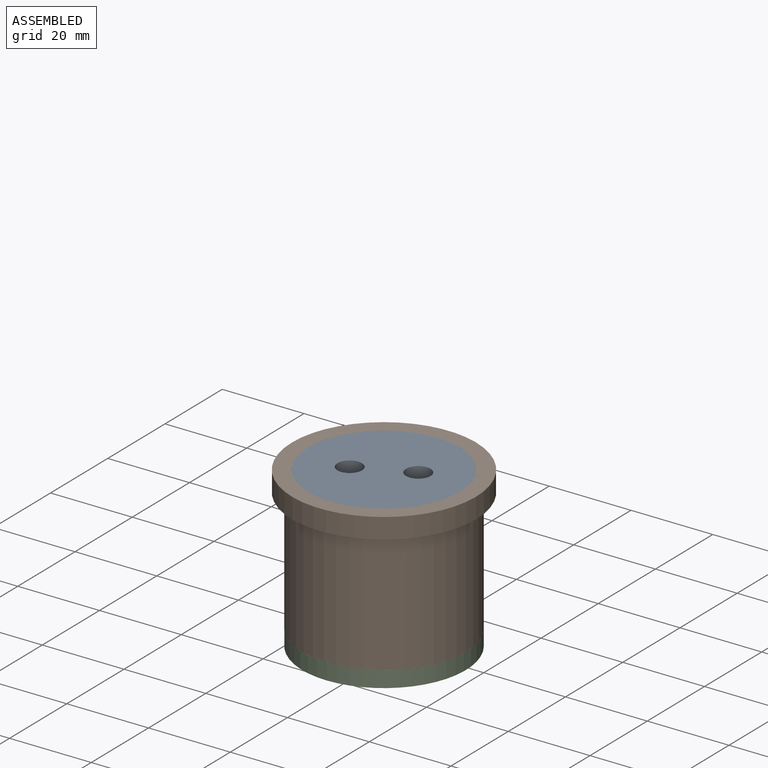
[diagram: assembled view]
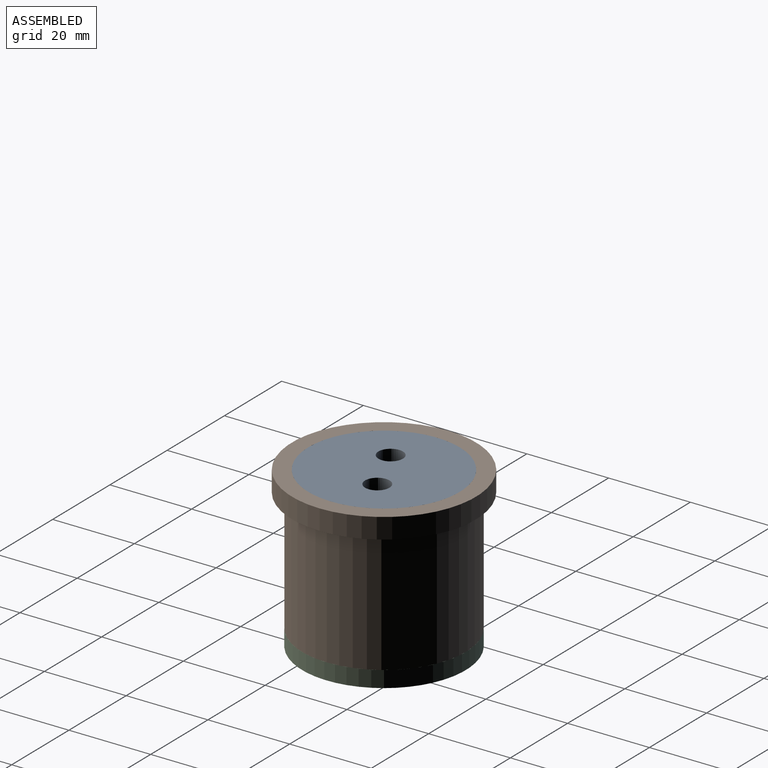
[diagram: assembled view, second angle]
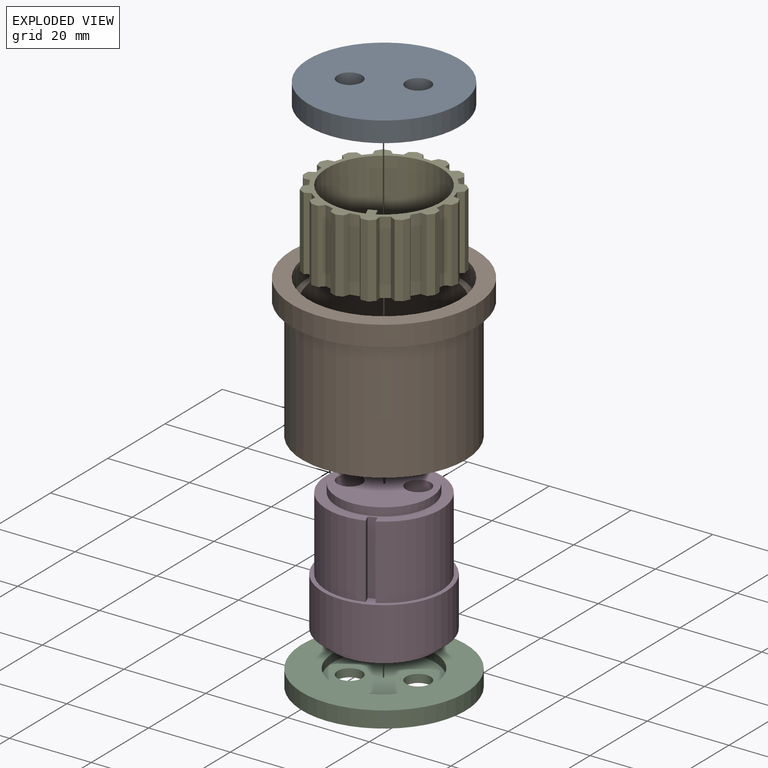
[diagram: exploded view]
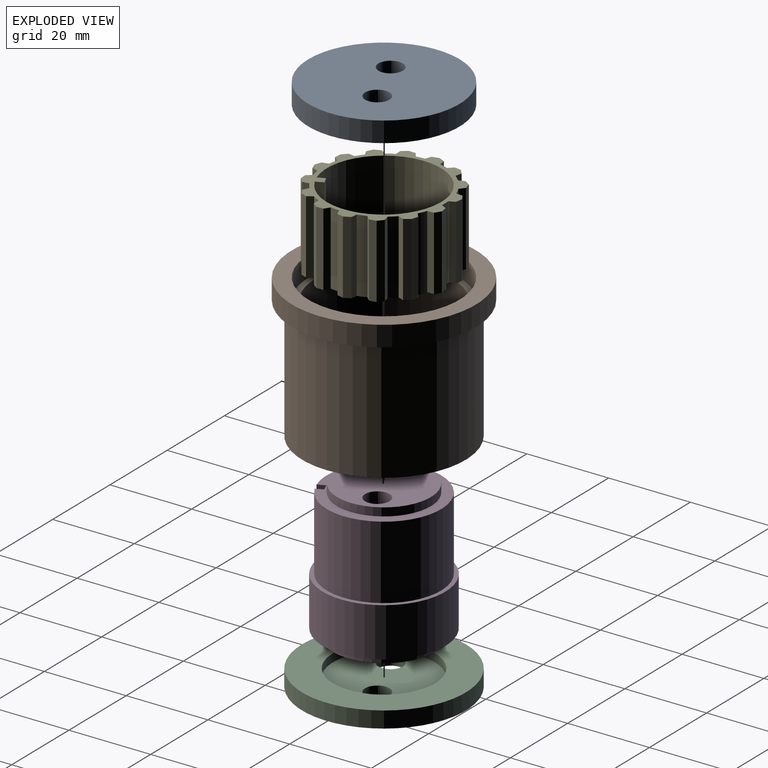
[diagram: exploded view, second angle]
ASSEMBLY  parts=5 mates=4
PART A: 7 faces, bbox 37x37x5 mm
  f0: cylinder r=18.5mm len=37mm, axis (0,0,-1), area 581.2mm2, adj f1,f2
  f1: plane 37x37mm, normal (0,0,1), area 1018.7mm2, adj f0,f5,f6
  f2: plane 37x37mm, normal (0,0,-1), area 659.7mm2, adj f0,f3
  f3: cylinder r=11.5mm len=23mm, axis (0,0,-1), area 144.5mm2, adj f2,f4
  f4: plane 23x23mm, normal (0,0,-1), area 358.9mm2, adj f3,f5,f6
  f5: cylinder r=3mm len=6mm, axis (0,0,1), area 56.5mm2, adj f1,f4
  f6: cylinder r=3mm len=6mm, axis (0,0,1), area 56.5mm2, adj f1,f4
PART B: 10 faces, bbox 45x45x35 mm
  f0: cylinder r=20mm len=40mm, axis (0,0,-1), area 3769.9mm2, adj f4,f9
  f1: plane 37x37mm, normal (0,0,1), area 167.3mm2, adj f5,f6
  f2: plane 34x34mm, normal (0,0,1), area 201.1mm2, adj f3,f5
  f3: cylinder r=15mm len=30mm, axis (0,0,-1), area 471.2mm2, adj f2,f4
  f4: plane 40x40mm, normal (0,0,-1), area 549.8mm2, adj f0,f3
  f5: cylinder r=17mm len=34mm, axis (0,0,-1), area 2670.4mm2, adj f1,f2
  f6: cylinder r=18.5mm len=37mm, axis (0,0,-1), area 581.2mm2, adj f1,f7
  f7: plane 45x45mm, normal (0,0,1), area 515.2mm2, adj f6,f8
  f8: cylinder r=22.5mm len=45mm, axis (0,0,1), area 706.9mm2, adj f7,f9
  f9: plane 45x45mm, normal (0,0,-1), area 333.8mm2, adj f0,f8
PART C: 7 faces, bbox 40x40x4 mm
  f0: cylinder r=3mm len=6mm, axis (0,0,1), area 37.7mm2, adj f4,f5
  f1: cylinder r=3mm len=6mm, axis (0,0,1), area 37.7mm2, adj f4,f5
  f2: cylinder r=20mm len=40mm, axis (0,0,-1), area 502.7mm2, adj f3,f4
  f3: plane 40x40mm, normal (0,0,1), area 765.8mm2, adj f2,f6
  f4: plane 40x40mm, normal (0,0,-1), area 1200.1mm2, adj f0,f1,f2
  f5: plane 25x25mm, normal (0,0,1), area 434.3mm2, adj f0,f1,f6
  f6: cylinder r=12.5mm len=25mm, axis (0,0,1), area 157.1mm2, adj f3,f5
PART D: 14 faces, bbox 30x30x34 mm
  f0: plane 28x27.96mm, normal (0,0,1), area 196.3mm2, adj f4,f5,f6,f7,f8
  f1: cylinder r=15mm len=30mm, axis (0,0,-1), area 1131mm2, adj f2,f3
  f2: plane 30x30mm, normal (0,0,-1), area 216mm2, adj f1,f10
  f3: plane 30x30mm, normal (0,0,1), area 95.1mm2, adj f1,f4,f5,f6,f7
  f4: cylinder r=14mm len=28mm, axis (0,0,-1), area 1547.3mm2, adj f0,f3,f5,f7
  f5: plane 18x1.96mm, normal (1,0,0), area 35.4mm2, adj f0,f3,f4,f6
  f6: plane 18x2mm, normal (0,1,0), area 36mm2, adj f0,f3,f5,f7
  f7: plane 18x1.96mm, normal (-1,0,0), area 35.4mm2, adj f0,f3,f4,f6
  f8: cylinder r=11.5mm len=23mm, axis (0,0,-1), area 144.5mm2, adj f0,f9
  f9: plane 23x23mm, normal (0,0,1), area 358.9mm2, adj f8,f12,f13
  f10: cylinder r=12.5mm len=25mm, axis (0,0,1), area 157.1mm2, adj f2,f11
  f11: plane 25x25mm, normal (0,0,-1), area 434.3mm2, adj f10,f12,f13
  f12: cylinder r=3mm len=34mm, axis (0,0,1), area 640.9mm2, adj f9,f11
  f13: cylinder r=3mm len=34mm, axis (0,0,1), area 640.9mm2, adj f9,f11
PART E: 111 faces, bbox 33.8x33.6x18 mm
  f0: plane 18x1.96mm, normal (1,0,0), area 35.4mm2, adj f1,f108,f109,f110
  f1: cylinder r=14mm len=28mm, axis (0,0,-1), area 1547.3mm2, adj f0,f2,f109,f110
  f2: plane 18x1.96mm, normal (-1,0,0), area 35.4mm2, adj f1,f108,f109,f110
  f3: plane 18x0.1mm, normal (0.31,-0.95,0), area 1.8mm2, adj f4,f107,f109,f110
  f4: plane 18x1.26mm, normal (0.55,-0.84,0), area 27mm2, adj f3,f5,f109,f110
  f5: plane 18x1.71mm, normal (1,-0.03,0), area 30.8mm2, adj f4,f6,f109,f110
  f6: plane 18x1.35mm, normal (0.79,0.62,0), area 30.8mm2, adj f5,f7,f109,f110
  f7: plane 18x1.5mm, normal (-0.05,1,0), area 27mm2, adj f6,f8,f109,f110
  f8: plane 18x0.1mm, normal (-0.31,0.95,0), area 1.8mm2, adj f7,f9,f109,f110
  f9: cylinder r=15mm len=18mm, axis (0,0,-1), area 40.9mm2, adj f8,f10,f109,f110
  f10: plane 18x0.07mm, normal (0.67,-0.74,0), area 1.8mm2, adj f9,f11,f109,f110
  f11: plane 18x1.26mm, normal (0.84,-0.54,0), area 27mm2, adj f10,f12,f109,f110
  f12: plane 18x1.59mm, normal (0.93,0.37,0), area 30.8mm2, adj f11,f13,f109,f110
  f13: plane 18x1.51mm, normal (0.47,0.88,0), area 30.8mm2, adj f12,f14,f109,f110
  f14: plane 18x1.34mm, normal (-0.45,0.89,0), area 27mm2, adj f13,f15,f109,f110
  f15: plane 18x0.07mm, normal (-0.67,0.74,0), area 1.8mm2, adj f14,f16,f109,f110
  f16: cylinder r=15mm len=18mm, axis (0,0,-1), area 40.9mm2, adj f15,f17,f109,f110
  f17: plane 18x0.09mm, normal (0.91,-0.41,0), area 1.8mm2, adj f16,f18,f109,f110
  f18: plane 18x1.48mm, normal (0.99,-0.15,0), area 27mm2, adj f17,f19,f109,f110
  f19: plane 18x1.23mm, normal (0.69,0.72,0), area 30.8mm2, adj f18,f20,f109,f110
  f20: plane 18x1.71mm, normal (0.07,1,0), area 30.8mm2, adj f19,f21,f109,f110
  f21: plane 18x1.16mm, normal (-0.78,0.63,0), area 27mm2, adj f20,f22,f109,f110
  f22: plane 18x0.09mm, normal (-0.91,0.41,0), area 1.8mm2, adj f21,f23,f109,f110
  f23: cylinder r=15mm len=18mm, axis (0,0,-1), area 40.9mm2, adj f22,f24,f109,f110
  f24: plane 18x0.1mm, normal (1,0,0), area 1.8mm2, adj f23,f25,f109,f110
  f25: plane 18x1.45mm, normal (0.97,0.26,0), area 27mm2, adj f24,f26,f109,f110
  f26: plane 18x1.61mm, normal (0.34,0.94,0), area 30.8mm2, adj f25,f27,f109,f110
  f27: plane 18x1.61mm, normal (-0.34,0.94,0), area 30.8mm2, adj f26,f28,f109,f110
  f28: plane 18x1.45mm, normal (-0.97,0.26,0), area 27mm2, adj f27,f29,f109,f110
  f29: plane 18x0.1mm, normal (-1,0,0), area 1.8mm2, adj f28,f30,f109,f110
  f30: cylinder r=15mm len=18mm, axis (0,0,-1), area 40.9mm2, adj f29,f31,f109,f110
  f31: plane 18x0.09mm, normal (0.91,0.41,0), area 1.8mm2, adj f30,f32,f109,f110
  f32: plane 18x1.16mm, normal (0.78,0.63,0), area 27mm2, adj f31,f33,f109,f110
  f33: plane 18x1.71mm, normal (-0.07,1,0), area 30.8mm2, adj f32,f34,f109,f110
  f34: plane 18x1.23mm, normal (-0.69,0.72,0), area 30.8mm2, adj f33,f35,f109,f110
  f35: plane 18x1.48mm, normal (-0.99,-0.15,0), area 27mm2, adj f34,f36,f109,f110
  f36: plane 18x0.09mm, normal (-0.91,-0.41,0), area 1.8mm2, adj f35,f37,f109,f110
  f37: cylinder r=15mm len=18mm, axis (0,0,-1), area 40.9mm2, adj f36,f38,f109,f110
  f38: plane 18x0.07mm, normal (0.67,0.74,0), area 1.8mm2, adj f37,f39,f109,f110
  f39: plane 18x1.34mm, normal (0.45,0.89,0), area 27mm2, adj f38,f40,f109,f110
  f40: plane 18x1.51mm, normal (-0.47,0.88,0), area 30.8mm2, adj f39,f41,f109,f110
  f41: plane 18x1.59mm, normal (-0.93,0.37,0), area 30.8mm2, adj f40,f42,f109,f110
  f42: plane 18x1.26mm, normal (-0.84,-0.54,0), area 27mm2, adj f41,f43,f109,f110
  f43: plane 18x0.07mm, normal (-0.67,-0.74,0), area 1.8mm2, adj f42,f44,f109,f110
  f44: cylinder r=15mm len=18mm, axis (0,0,-1), area 40.9mm2, adj f43,f45,f109,f110
  f45: plane 18x0.1mm, normal (0.31,0.95,0), area 1.8mm2, adj f44,f46,f109,f110
  f46: plane 18x1.5mm, normal (0.05,1,0), area 27mm2, adj f45,f47,f109,f110
  f47: plane 18x1.35mm, normal (-0.79,0.62,0), area 30.8mm2, adj f46,f48,f109,f110
  f48: plane 18x1.71mm, normal (-1,-0.03,0), area 30.8mm2, adj f47,f49,f109,f110
  f49: plane 18x1.26mm, normal (-0.55,-0.84,0), area 27mm2, adj f48,f50,f109,f110
  f50: plane 18x0.1mm, normal (-0.31,-0.95,0), area 1.8mm2, adj f49,f51,f109,f110
  f51: cylinder r=15mm len=18mm, axis (0,0,-1), area 40.9mm2, adj f50,f52,f109,f110
  f52: plane 18x0.1mm, normal (-0.1,0.99,0), area 1.8mm2, adj f51,f53,f109,f110
  f53: plane 18x1.4mm, normal (-0.36,0.93,0), area 27mm2, adj f52,f54,f109,f110
  f54: plane 18x1.66mm, normal (-0.97,0.24,0), area 30.8mm2, adj f53,f55,f109,f110
  f55: plane 18x1.54mm, normal (-0.9,-0.44,0), area 30.8mm2, adj f54,f56,f109,f110
  f56: plane 18x1.48mm, normal (-0.16,-0.99,0), area 27mm2, adj f55,f57,f109,f110
  f57: plane 18x0.1mm, normal (0.1,-0.99,0), area 1.8mm2, adj f56,f58,f109,f110
  f58: cylinder r=15mm len=18mm, axis (0,0,-1), area 40.9mm2, adj f57,f59,f109,f110
  f59: plane 18x0.09mm, normal (-0.5,0.87,0), area 1.8mm2, adj f58,f60,f109,f110
  f60: plane 18x1.06mm, normal (-0.71,0.71,0), area 27mm2, adj f59,f61,f109,f110
  f61: plane 18x1.69mm, normal (-0.98,-0.17,0), area 30.8mm2, adj f60,f62,f109,f110
  f62: plane 18x1.31mm, normal (-0.64,-0.77,0), area 30.8mm2, adj f61,f63,f109,f110
  f63: plane 18x1.45mm, normal (0.26,-0.97,0), area 27mm2, adj f62,f64,f109,f110
  f64: plane 18x0.09mm, normal (0.5,-0.87,0), area 1.8mm2, adj f63,f65,f109,f110
  f65: cylinder r=15mm len=18mm, axis (0,0,-1), area 40.9mm2, adj f64,f66,f109,f110
  f66: plane 18x0.08mm, normal (-0.81,0.59,0), area 1.8mm2, adj f65,f67,f109,f110
  f67: plane 18x1.4mm, normal (-0.93,0.36,0), area 27mm2, adj f66,f68,f109,f110
  f68: plane 18x1.42mm, normal (-0.83,-0.56,0), area 30.8mm2, adj f67,f69,f109,f110
  f69: plane 18x1.65mm, normal (-0.28,-0.96,0), area 30.8mm2, adj f68,f70,f109,f110
  f70: plane 18x1.17mm, normal (0.63,-0.78,0), area 27mm2, adj f69,f71,f109,f110
  f71: plane 18x0.08mm, normal (0.81,-0.59,0), area 1.8mm2, adj f70,f72,f109,f110
  f72: cylinder r=15mm len=18mm, axis (0,0,-1), area 40.9mm2, adj f71,f73,f109,f110
  f73: plane 18x0.1mm, normal (-0.98,0.21,0), area 1.8mm2, adj f72,f74,f109,f110
  f74: plane 18x1.5mm, normal (-1,-0.05,0), area 27mm2, adj f73,f75,f109,f110
  f75: plane 18x1.45mm, normal (-0.53,-0.85,0), area 30.8mm2, adj f74,f76,f109,f110
  f76: plane 18x1.7mm, normal (0.14,-0.99,0), area 30.8mm2, adj f75,f77,f109,f110
  f77: plane 18x1.34mm, normal (0.89,-0.46,0), area 27mm2, adj f76,f78,f109,f110
  f78: plane 18x0.1mm, normal (0.98,-0.21,0), area 1.8mm2, adj f77,f79,f109,f110
  f79: cylinder r=15mm len=18mm, axis (0,0,-1), area 40.9mm2, adj f78,f80,f109,f110
  f80: plane 18x0.1mm, normal (-0.98,-0.21,0), area 1.8mm2, adj f79,f81,f109,f110
  f81: plane 18x1.34mm, normal (-0.89,-0.46,0), area 27mm2, adj f80,f82,f109,f110
  f82: plane 18x1.7mm, normal (-0.14,-0.99,0), area 30.8mm2, adj f81,f83,f109,f110
  f83: plane 18x1.45mm, normal (0.53,-0.85,0), area 30.8mm2, adj f82,f84,f109,f110
  f84: plane 18x1.5mm, normal (1,-0.05,0), area 27mm2, adj f83,f85,f109,f110
  f85: plane 18x0.1mm, normal (0.98,0.21,0), area 1.8mm2, adj f84,f86,f109,f110
  f86: cylinder r=15mm len=18mm, axis (0,0,-1), area 40.9mm2, adj f85,f87,f109,f110
  f87: plane 18x0.08mm, normal (-0.81,-0.59,0), area 1.8mm2, adj f86,f88,f109,f110
  f88: plane 18x1.17mm, normal (-0.63,-0.78,0), area 27mm2, adj f87,f89,f109,f110
  f89: plane 18x1.65mm, normal (0.28,-0.96,0), area 30.8mm2, adj f88,f90,f109,f110
  f90: plane 18x1.42mm, normal (0.83,-0.56,0), area 30.8mm2, adj f89,f91,f109,f110
  f91: plane 18x1.4mm, normal (0.93,0.36,0), area 27mm2, adj f90,f92,f109,f110
  f92: plane 18x0.08mm, normal (0.81,0.59,0), area 1.8mm2, adj f91,f93,f109,f110
  f93: cylinder r=15mm len=18mm, axis (0,0,-1), area 40.9mm2, adj f92,f94,f109,f110
  f94: plane 18x0.09mm, normal (-0.5,-0.87,0), area 1.8mm2, adj f93,f95,f109,f110
  f95: plane 18x1.45mm, normal (-0.26,-0.97,0), area 27mm2, adj f94,f96,f109,f110
  f96: plane 18x1.31mm, normal (0.64,-0.77,0), area 30.8mm2, adj f95,f97,f109,f110
  f97: plane 18x1.69mm, normal (0.98,-0.17,0), area 30.8mm2, adj f96,f98,f109,f110
  f98: plane 18x1.06mm, normal (0.71,0.71,0), area 27mm2, adj f97,f99,f109,f110
  f99: plane 18x0.09mm, normal (0.5,0.87,0), area 1.8mm2, adj f98,f100,f109,f110
  f100: cylinder r=15mm len=18mm, axis (0,0,-1), area 40.9mm2, adj f99,f101,f109,f110
  f101: plane 18x0.1mm, normal (-0.1,-0.99,0), area 1.8mm2, adj f100,f102,f109,f110
  f102: plane 18x1.48mm, normal (0.16,-0.99,0), area 27mm2, adj f101,f103,f109,f110
  f103: plane 18x1.54mm, normal (0.9,-0.44,0), area 30.8mm2, adj f102,f104,f109,f110
  f104: plane 18x1.66mm, normal (0.97,0.24,0), area 30.8mm2, adj f103,f105,f109,f110
  f105: plane 18x1.4mm, normal (0.36,0.93,0), area 27mm2, adj f104,f106,f109,f110
  f106: plane 18x0.1mm, normal (0.1,0.99,0), area 1.8mm2, adj f105,f107,f109,f110
  f107: cylinder r=15mm len=18mm, axis (0,0,-1), area 40.9mm2, adj f3,f106,f109,f110
  f108: plane 18x2mm, normal (0,-1,0), area 36mm2, adj f0,f2,f109,f110
  f109: plane 33.81x33.63mm, normal (0,0,1), area 188.2mm2, adj f0,f1,f2,f3,f4,f5,f6,f7
  f110: plane 33.81x33.63mm, normal (0,0,-1), area 188.2mm2, adj f0,f1,f2,f3,f4,f5,f6,f7
PLACE A rot(axis=(0,0,-1),156deg) t=(-11.24,1.22,35.2)mm
PLACE B t=(-11.24,1.22,5.2)mm fixed
PLACE C rot(axis=(0,0,-1),156deg) t=(-11.24,1.22,1.2)mm
PLACE D rot(axis=(0,0,-1),156deg) t=(-11.24,1.22,5.2)mm
PLACE E rot(axis=(0,0,-1),156deg) t=(-11.24,1.22,17.2)mm
MATE revolute B.f3 <-> D.f1  axis (0,0,-1) through (-11.24,1.22,5.2)mm
MATE fastened C.f2 <-> D.f1  axis (0,0,1) through (-11.24,1.22,5.2)mm
MATE fastened E.f110 <-> D.f3  axis (0,0,-1) through (-5.45,-9.34,17.2)mm
MATE fastened A.f3 <-> D.f8  axis (0,0,-1) through (-11.24,1.22,37.2)mm
